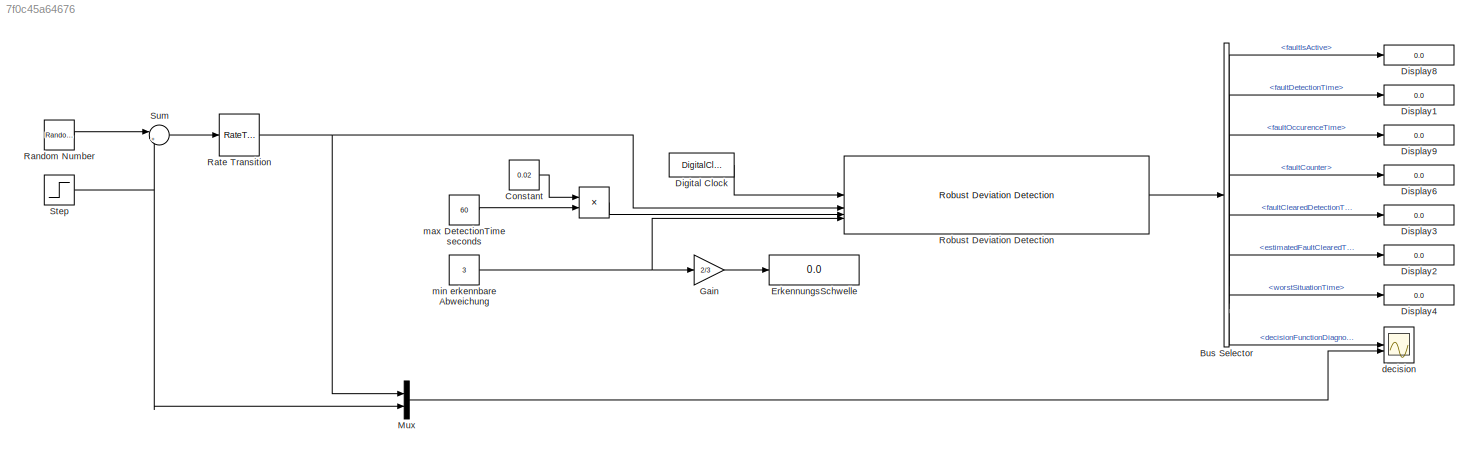
MODEL slx_7f0c45a64676
KIND model
CONFIG AbsTol = auto
CONFIG EnableMultiTasking = on
CONFIG FixedStep = 0.01
CONFIG MaxStep = auto
CONFIG MinStep = auto
CONFIG RelTol = 1e-3
CONFIG SampleTimeConstraint = Unconstrained
CONFIG SolverName = FixedStepAuto
CONFIG StartTime = 0.0
CONFIG StopTime = 200
BLOCK [Product]   
  Inputs = /*
  NameLocation = left
BLOCK [BusSelector] Bus Selector
  OutputSignals = faultIsActive,faultDetectionTime,faultOccurenceTime,faultCounter,faultClearedDetectionTime,estimatedFaultClearedTime,worstSituationTime,decisionFunctionDiagnostic
BLOCK [Constant] Constant
  Value = 0.02
BLOCK [DigitalClock] Digital Clock
  SampleTime = 0.02
BLOCK [Display] Display1
  Decimation = 1
BLOCK [Display] Display2
  Decimation = 1
BLOCK [Display] Display3
  Decimation = 1
BLOCK [Display] Display4
  Decimation = 1
BLOCK [Display] Display6
  Decimation = 1
BLOCK [Display] Display8
  Decimation = 1
BLOCK [Display] Display9
  Decimation = 1
BLOCK [Display] ErkennungsSchwelle
  Decimation = 1
BLOCK [Gain] Gain
  Gain = 2/3
BLOCK [Mux] Mux
  DisplayOption = bar
  Inputs = 2
BLOCK [RandomNumber] Random Number
  SampleTime = 0.02
  Seed = 11
  Variance = 10*10
BLOCK [RateTransition] Rate Transition
  OutPortSampleTime = 0.02
BLOCK [Reference] Robust Deviation Detection  REF=AVE_Library/Fault Detection and Isolation/Robust Deviation Detection
  SourceBlock = AVE_Library/Fault Detection and Isolation/Robust Deviation Detection
BLOCK [Step] Step
  After = -3
  SampleTime = 0.02
  Time = 100
BLOCK [Sum] Sum
  Inputs = |++
BLOCK [Scope] decision
  Floating = off
  NumInputPorts = 2
  ScopeSpecificationString = Simulink.scopes.TimeScopeBlockCfg('CurrentConfiguration', extmgr.ConfigurationSet(extmgr.Configuration('Core','General UI',true),extmgr.Configuration('Core','Source UI',true),extmgr.Configuration('Sources','WiredSimulink',true),extmgr.Configuration('Visuals','Time Domain',true,'SerializedDisplays',{struct('MinYLimReal','-1500000.00000','MaxYLimReal','13500000.00000','YLabelReal','','MinYLimMag',' ...<+2306ch>
BLOCK [Constant] max DetectionTime seconds
  Value = 60
BLOCK [Constant] min erkennbare Abweichung
  Value = 3
LINE   :1 -> Robust Deviation Detection:3
LINE Bus Selector:1 -> Display8:1
LINE Bus Selector:2 -> Display1:1
LINE Bus Selector:3 -> Display9:1
LINE Bus Selector:4 -> Display6:1
LINE Bus Selector:5 -> Display3:1
LINE Bus Selector:6 -> Display2:1
LINE Bus Selector:7 -> Display4:1
LINE Bus Selector:8 -> decision:1
LINE Constant:1 ->   :1
LINE Digital Clock:1 -> Robust Deviation Detection:1
LINE Gain:1 -> ErkennungsSchwelle:1
LINE Mux:1 -> decision:2
LINE Random Number:1 -> Sum:1
NET Rate Transition:1 -> Mux:1, Robust Deviation Detection:2
LINE Robust Deviation Detection:1 -> Bus Selector:1
NET Step:1 -> Mux:2, Sum:2
LINE Sum:1 -> Rate Transition:1
LINE max DetectionTime seconds:1 ->   :2
NET min erkennbare Abweichung:1 -> Gain:1, Robust Deviation Detection:4
note: NET lines group one-source signal fan-out (src -> all destinations, sorted); 1:1 wires keep LINE
